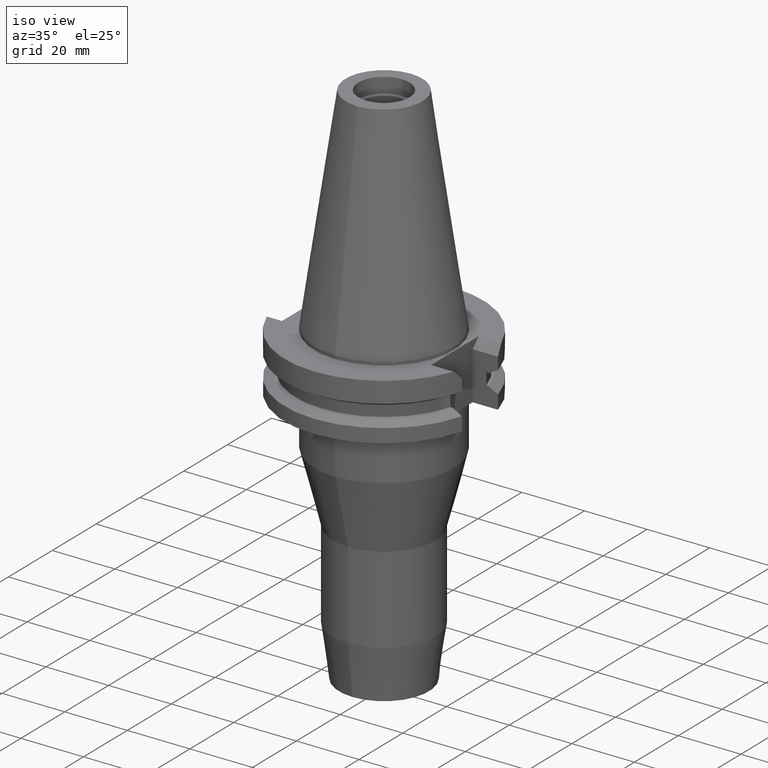
[diagram: clean part render]
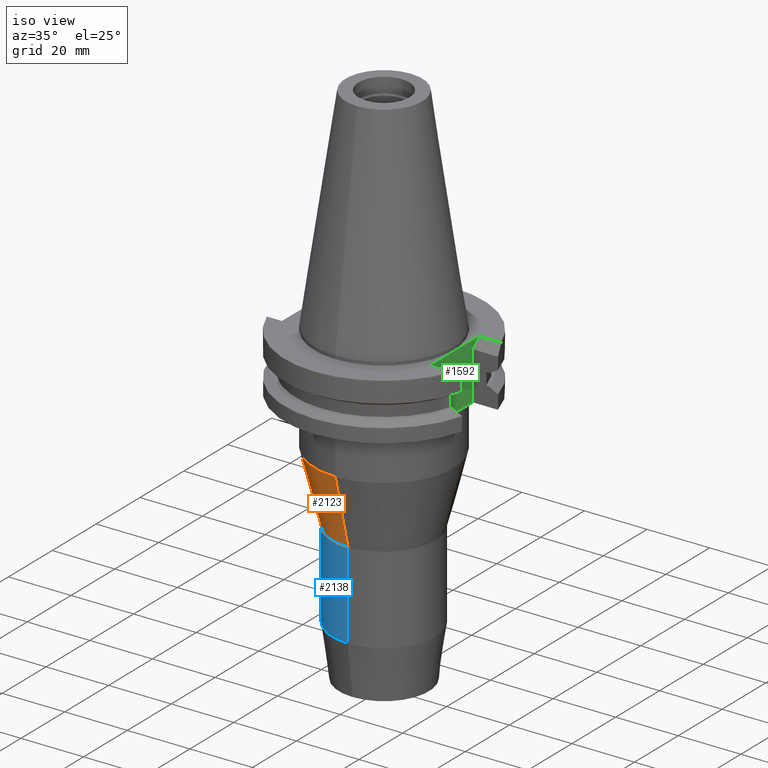
[diagram: same view with three faces highlighted in distinct colors, each labeled with its STEP entity id]
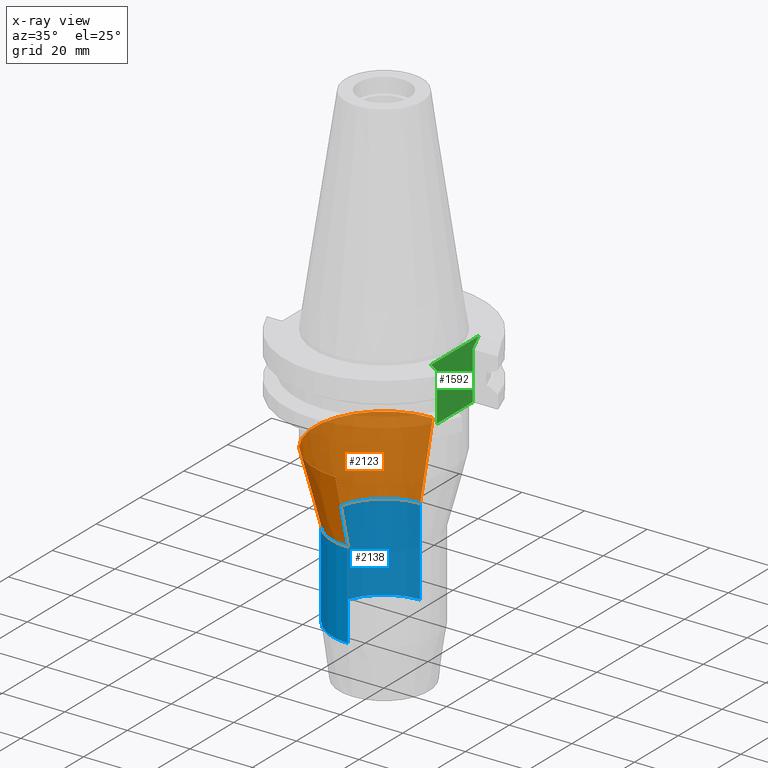
[diagram: x-ray of the same camera — body ghosted, the three highlighted faces saturated]
A machine part, iso view with three faces highlighted in distinct colors.
The next image is the same camera in x-ray (body ghosted, the three faces saturated) — at least one of them is partly hidden behind the body in this view.
Their STEP definitions:

[orange] entity #2123 — the highlighted conical surface has half-angle 14.334 deg.
#862=DIRECTION('',(0.E0,-2.475739947107E-1,-9.688689886373E-1));
#863=VECTOR('',#862,2.312439966358E1);
#864=CARTESIAN_POINT('',(0.E0,2.2225E1,-3.5E1));
#865=LINE('',#864,#863);
#885=CARTESIAN_POINT('',(0.E0,0.E0,-3.5E1));
#886=DIRECTION('',(0.E0,0.E0,1.E0));
#887=DIRECTION('',(0.E0,1.E0,0.E0));
#888=AXIS2_PLACEMENT_3D('',#885,#886,#887);
#893=DIRECTION('',(0.E0,2.475739947107E-1,-9.688689886373E-1));
#894=VECTOR('',#893,2.312439966358E1);
#895=CARTESIAN_POINT('',(0.E0,-2.2225E1,-3.5E1));
#896=LINE('',#895,#894);
#900=CARTESIAN_POINT('',(0.E0,0.E0,-5.740451371490E1));
#901=DIRECTION('',(0.E0,0.E0,-1.E0));
#902=DIRECTION('',(0.E0,-1.E0,0.E0));
#903=AXIS2_PLACEMENT_3D('',#900,#901,#902);
#1322=CARTESIAN_POINT('',(0.E0,1.65E1,-5.740451371490E1));
#1323=VERTEX_POINT('',#1322);
#1324=CARTESIAN_POINT('',(0.E0,-1.65E1,-5.740451371490E1));
#1325=VERTEX_POINT('',#1324);
#1326=CARTESIAN_POINT('',(0.E0,2.2225E1,-3.5E1));
#1327=VERTEX_POINT('',#1326);
#1328=CARTESIAN_POINT('',(0.E0,-2.2225E1,-3.5E1));
#1329=VERTEX_POINT('',#1328);
#2111=CARTESIAN_POINT('',(0.E0,0.E0,-4.620225685745E1));
#2112=DIRECTION('',(0.E0,0.E0,1.E0));
#2113=DIRECTION('',(0.E0,1.E0,0.E0));
#2114=AXIS2_PLACEMENT_3D('',#2111,#2112,#2113);
#2115=CONICAL_SURFACE('',#2114,1.93625E1,1.4334E1);
#2116=ORIENTED_EDGE('',*,*,#2101,.F.);
#2117=ORIENTED_EDGE('',*,*,#2078,.T.);
#2118=ORIENTED_EDGE('',*,*,#2105,.T.);
#2120=ORIENTED_EDGE('',*,*,#2119,.T.);
#2121=EDGE_LOOP('',(#2116,#2117,#2118,#2120));
#2122=FACE_OUTER_BOUND('',#2121,.F.);
#889=CIRCLE('',#888,2.2225E1);
#904=CIRCLE('',#903,1.65E1);
#2078=EDGE_CURVE('',#1327,#1329,#889,.T.);
#2101=EDGE_CURVE('',#1327,#1323,#865,.T.);
#2105=EDGE_CURVE('',#1329,#1325,#896,.T.);
#2119=EDGE_CURVE('',#1325,#1323,#904,.T.);
#2123=ADVANCED_FACE('',(#2122),#2115,.T.);

[blue] entity #2138 — the highlighted cylindrical surface (partial cylindrical patch) has radius 16.5 mm, axis along (0, 0, -1).
#900=CARTESIAN_POINT('',(0.E0,0.E0,-5.740451371490E1));
#901=DIRECTION('',(0.E0,0.E0,-1.E0));
#902=DIRECTION('',(0.E0,-1.E0,0.E0));
#903=AXIS2_PLACEMENT_3D('',#900,#901,#902);
#908=DIRECTION('',(0.E0,-2.259505978366E-14,-1.E0));
#909=VECTOR('',#908,2.783043404923E1);
#910=CARTESIAN_POINT('',(0.E0,-1.65E1,-5.740451371490E1));
#911=LINE('',#910,#909);
#915=DIRECTION('',(0.E0,2.246740407867E-14,-1.E0));
#916=VECTOR('',#915,2.783043404923E1);
#917=CARTESIAN_POINT('',(0.E0,1.65E1,-5.740451371490E1));
#918=LINE('',#917,#916);
#937=CARTESIAN_POINT('',(0.E0,0.E0,-8.523494776413E1));
#938=DIRECTION('',(0.E0,0.E0,1.E0));
#939=DIRECTION('',(0.E0,1.E0,0.E0));
#940=AXIS2_PLACEMENT_3D('',#937,#938,#939);
#1318=CARTESIAN_POINT('',(0.E0,1.65E1,-8.523494776413E1));
#1319=VERTEX_POINT('',#1318);
#1320=CARTESIAN_POINT('',(0.E0,-1.65E1,-8.523494776413E1));
#1321=VERTEX_POINT('',#1320);
#1322=CARTESIAN_POINT('',(0.E0,1.65E1,-5.740451371490E1));
#1323=VERTEX_POINT('',#1322);
#1324=CARTESIAN_POINT('',(0.E0,-1.65E1,-5.740451371490E1));
#1325=VERTEX_POINT('',#1324);
#2124=CARTESIAN_POINT('',(0.E0,2.164471368983E-14,7.67425E1));
#2125=DIRECTION('',(0.E0,0.E0,-1.E0));
#2126=DIRECTION('',(0.E0,-1.E0,0.E0));
#2127=AXIS2_PLACEMENT_3D('',#2124,#2125,#2126);
#2128=CYLINDRICAL_SURFACE('',#2127,1.65E1);
#2130=ORIENTED_EDGE('',*,*,#2129,.F.);
#2131=ORIENTED_EDGE('',*,*,#2119,.F.);
#2133=ORIENTED_EDGE('',*,*,#2132,.T.);
#2135=ORIENTED_EDGE('',*,*,#2134,.F.);
#2136=EDGE_LOOP('',(#2130,#2131,#2133,#2135));
#2137=FACE_OUTER_BOUND('',#2136,.F.);
#904=CIRCLE('',#903,1.65E1);
#941=CIRCLE('',#940,1.65E1);
#2119=EDGE_CURVE('',#1325,#1323,#904,.T.);
#2129=EDGE_CURVE('',#1323,#1319,#918,.T.);
#2132=EDGE_CURVE('',#1325,#1321,#911,.T.);
#2134=EDGE_CURVE('',#1319,#1321,#941,.T.);
#2138=ADVANCED_FACE('',(#2137),#2128,.T.);

[green] entity #1592 — the highlighted planar face has unit normal (1, 0, 0).
#94=DIRECTION('',(0.E0,-1.E0,0.E0));
#95=VECTOR('',#94,2.178E1);
#96=CARTESIAN_POINT('',(2.257E1,1.089E1,-1.E0));
#97=LINE('',#96,#95);
#163=DIRECTION('',(0.E0,-1.E0,0.E0));
#164=VECTOR('',#163,1.638E1);
#165=CARTESIAN_POINT('',(2.257E1,8.19E0,-1.905E1));
#166=LINE('',#165,#164);
#170=DIRECTION('',(0.E0,0.E0,1.E0));
#171=VECTOR('',#170,1.535E1);
#172=CARTESIAN_POINT('',(2.257E1,-8.19E0,-1.905E1));
#173=LINE('',#172,#171);
#177=DIRECTION('',(0.E0,-7.071067811865E-1,7.071067811865E-1));
#178=VECTOR('',#177,3.818376618407E0);
#179=CARTESIAN_POINT('',(2.257E1,-8.19E0,-3.7E0));
#180=LINE('',#179,#178);
#184=DIRECTION('',(0.E0,-7.071067811865E-1,-7.071067811865E-1));
#185=VECTOR('',#184,3.818376618407E0);
#186=CARTESIAN_POINT('',(2.257E1,1.089E1,-1.E0));
#187=LINE('',#186,#185);
#191=DIRECTION('',(0.E0,0.E0,-1.E0));
#192=VECTOR('',#191,1.535E1);
#193=CARTESIAN_POINT('',(2.257E1,8.19E0,-3.7E0));
#194=LINE('',#193,#192);
#1334=CARTESIAN_POINT('',(2.257E1,8.19E0,-1.905E1));
#1335=CARTESIAN_POINT('',(2.257E1,-8.19E0,-1.905E1));
#1336=VERTEX_POINT('',#1334);
#1337=VERTEX_POINT('',#1335);
#1354=CARTESIAN_POINT('',(2.257E1,-8.19E0,-3.7E0));
#1355=VERTEX_POINT('',#1354);
#1356=CARTESIAN_POINT('',(2.257E1,-1.089E1,-1.E0));
#1357=VERTEX_POINT('',#1356);
#1358=CARTESIAN_POINT('',(2.257E1,1.089E1,-1.E0));
#1359=VERTEX_POINT('',#1358);
#1360=CARTESIAN_POINT('',(2.257E1,8.19E0,-3.7E0));
#1361=VERTEX_POINT('',#1360);
#1574=CARTESIAN_POINT('',(2.257E1,0.E0,0.E0));
#1575=DIRECTION('',(1.E0,0.E0,0.E0));
#1576=DIRECTION('',(0.E0,0.E0,-1.E0));
#1577=AXIS2_PLACEMENT_3D('',#1574,#1575,#1576);
#1578=PLANE('',#1577);
#1580=ORIENTED_EDGE('',*,*,#1579,.T.);
#1582=ORIENTED_EDGE('',*,*,#1581,.T.);
#1584=ORIENTED_EDGE('',*,*,#1583,.T.);
#1585=ORIENTED_EDGE('',*,*,#1547,.F.);
#1587=ORIENTED_EDGE('',*,*,#1586,.T.);
#1589=ORIENTED_EDGE('',*,*,#1588,.T.);
#1590=EDGE_LOOP('',(#1580,#1582,#1584,#1585,#1587,#1589));
#1591=FACE_OUTER_BOUND('',#1590,.F.);
#1547=EDGE_CURVE('',#1359,#1357,#97,.T.);
#1579=EDGE_CURVE('',#1336,#1337,#166,.T.);
#1581=EDGE_CURVE('',#1337,#1355,#173,.T.);
#1583=EDGE_CURVE('',#1355,#1357,#180,.T.);
#1586=EDGE_CURVE('',#1359,#1361,#187,.T.);
#1588=EDGE_CURVE('',#1361,#1336,#194,.T.);
#1592=ADVANCED_FACE('',(#1591),#1578,.T.);